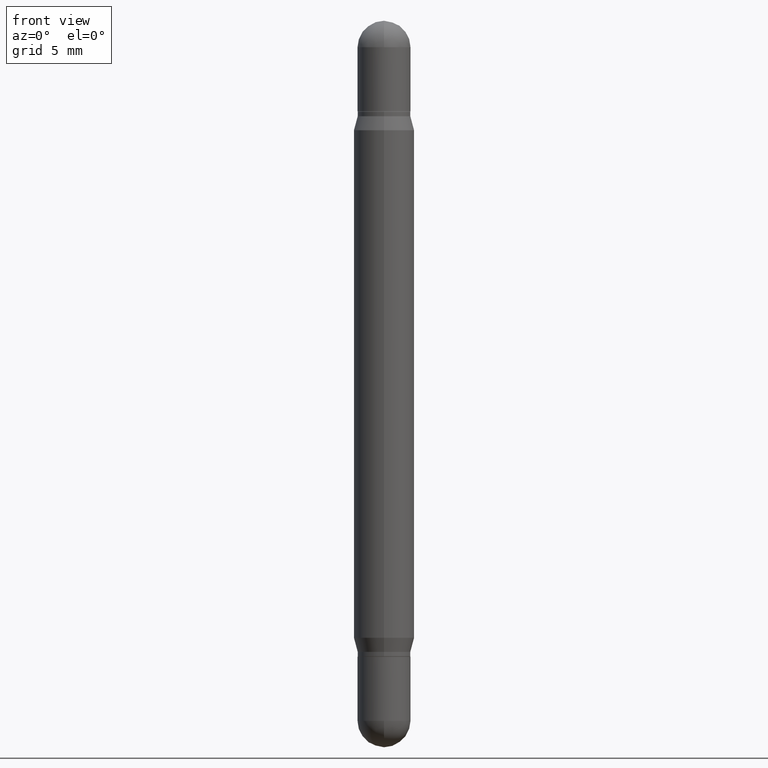
[diagram: clean part render]
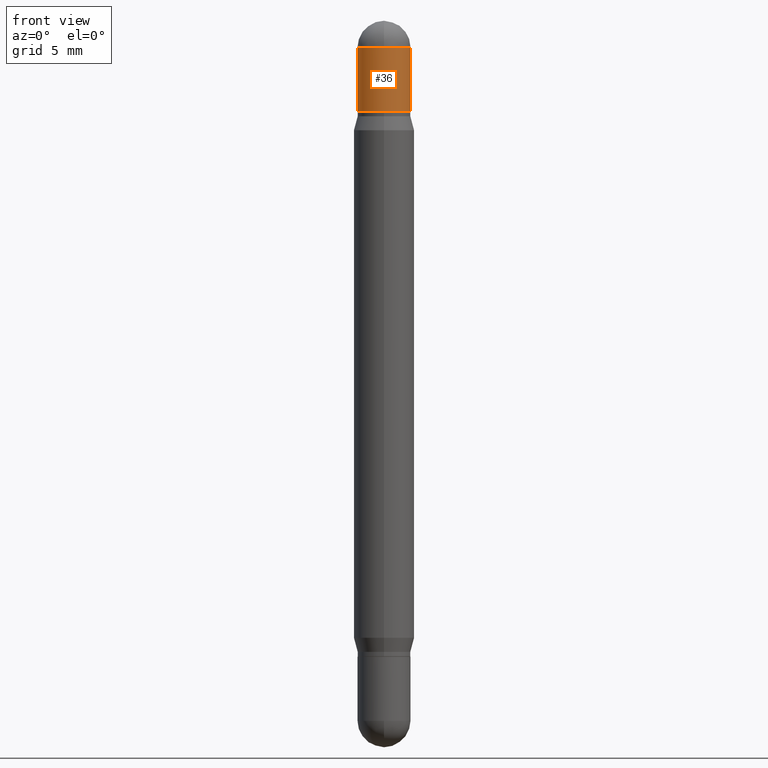
[diagram: same view with one face highlighted and labeled with its STEP entity id]
A machine part, front view. The second image highlights one B-rep face of the part: STEP entity #36.
In plain terms, the highlighted cylindrical surface (edge-blend (fillet) strip) has radius 1.3894 mm, axis along (-0, -0, -1).
Its self-contained STEP definition (entity closure, byte-faithful):
#9 = AXIS2_PLACEMENT_3D ( 'NONE', #87, #768, #185 ) ;
#36 = ADVANCED_FACE ( 'NONE', ( #954 ), #710, .T. ) ;
#52 = DIRECTION ( 'NONE',  ( 2.445468806185136597E-29, 3.479614466977828254E-15, 1.000000000000000000 ) ) ;
#53 = CIRCLE ( 'NONE', #845, 0.05469999999999999862 ) ;
#55 = EDGE_LOOP ( 'NONE', ( #854, #140, #611, #1017, #194 ) ) ;
#73 = VECTOR ( 'NONE', #137, 39.37007874015748143 ) ;
#87 = CARTESIAN_POINT ( 'NONE',  ( 3.534436065579377749E-29, -1.992350652426753183E-16, -0.05470000000000037332 ) ) ;
#105 = CARTESIAN_POINT ( 'NONE',  ( -0.05469999999999999862, -4.853052613887629372E-15, -1.500000000000000444 ) ) ;
#120 = DIRECTION ( 'NONE',  ( 2.445468806185136597E-29, 3.479614466977828254E-15, 1.000000000000000000 ) ) ;
#137 = DIRECTION ( 'NONE',  ( -2.445468806185136877E-29, -3.479614466977828648E-15, -1.000000000000000000 ) ) ;
#140 = ORIENTED_EDGE ( 'NONE', *, *, #1099, .T. ) ;
#185 = DIRECTION ( 'NONE',  ( 1.000000000000000000, -6.982962677686268288E-15, 0.000000000000000000 ) ) ;
#194 = ORIENTED_EDGE ( 'NONE', *, *, #1117, .F. ) ;
#263 = DIRECTION ( 'NONE',  ( -2.445468806185136877E-29, -3.479614466977828648E-15, -1.000000000000000000 ) ) ;
#271 = DIRECTION ( 'NONE',  ( -2.445468806185136597E-29, -3.479614466977828254E-15, -1.000000000000000000 ) ) ;
#288 = VERTEX_POINT ( 'NONE', #1050 ) ;
#289 = VECTOR ( 'NONE', #263, 39.37007874015748143 ) ;
#292 = LINE ( 'NONE', #387, #73 ) ;
#298 = VERTEX_POINT ( 'NONE', #519 ) ;
#352 = VERTEX_POINT ( 'NONE', #626 ) ;
#387 = CARTESIAN_POINT ( 'NONE',  ( 0.05469999999999999862, -5.610289912835170741E-15, -1.500000000000000444 ) ) ;
#441 = LINE ( 'NONE', #105, #289 ) ;
#461 = EDGE_CURVE ( 'NONE', #298, #352, #292, .T. ) ;
#464 = DIRECTION ( 'NONE',  ( 1.000000000000000000, -6.982962677686266711E-15, 0.000000000000000000 ) ) ;
#493 = EDGE_CURVE ( 'NONE', #740, #352, #53, .T. ) ;
#519 = CARTESIAN_POINT ( 'NONE',  ( 0.05470000000000000556, -8.113796207026979199E-16, -0.05470000000000037332 ) ) ;
#522 = CARTESIAN_POINT ( 'NONE',  ( 0.000000000000000000, -5.228321854365732350E-15, -1.500000000000000444 ) ) ;
#543 = CARTESIAN_POINT ( 'NONE',  ( 3.534436065579377749E-29, -1.992350652426753183E-16, -0.05470000000000037332 ) ) ;
#564 = EDGE_CURVE ( 'NONE', #572, #288, #970, .T. ) ;
#572 = VERTEX_POINT ( 'NONE', #590 ) ;
#590 = CARTESIAN_POINT ( 'NONE',  ( -0.05470000000000000556, -5.414232175515625545E-17, -0.05470000000000037332 ) ) ;
#611 = ORIENTED_EDGE ( 'NONE', *, *, #493, .T. ) ;
#626 = CARTESIAN_POINT ( 'NONE',  ( 0.05469999999999999862, -1.041556117693281390E-15, -0.1870000000000002216 ) ) ;
#695 = AXIS2_PLACEMENT_3D ( 'NONE', #522, #271, #880 ) ;
#710 = CYLINDRICAL_SURFACE ( 'NONE', #695, 0.05469999999999999862 ) ;
#719 = DIRECTION ( 'NONE',  ( 1.000000000000000000, -6.982962677686268288E-15, 0.000000000000000000 ) ) ;
#740 = VERTEX_POINT ( 'NONE', #1011 ) ;
#768 = DIRECTION ( 'NONE',  ( 2.445468806185136597E-29, 3.479614466977828254E-15, 1.000000000000000000 ) ) ;
#845 = AXIS2_PLACEMENT_3D ( 'NONE', #979, #52, #464 ) ;
#847 = AXIS2_PLACEMENT_3D ( 'NONE', #543, #120, #719 ) ;
#854 = ORIENTED_EDGE ( 'NONE', *, *, #564, .F. ) ;
#880 = DIRECTION ( 'NONE',  ( 1.000000000000000000, -6.982962677686260400E-15, 0.000000000000000000 ) ) ;
#954 = FACE_OUTER_BOUND ( 'NONE', #55, .T. ) ;
#970 = CIRCLE ( 'NONE', #847, 0.05470000000000000556 ) ;
#979 = CARTESIAN_POINT ( 'NONE',  ( 3.210900542521084585E-29, -6.595880592238425060E-16, -0.1870000000000002216 ) ) ;
#1011 = CARTESIAN_POINT ( 'NONE',  ( -0.05469999999999999862, -5.414232175515661906E-17, -0.1870000000000002216 ) ) ;
#1015 = CIRCLE ( 'NONE', #9, 0.05470000000000000556 ) ;
#1017 = ORIENTED_EDGE ( 'NONE', *, *, #461, .F. ) ;
#1050 = CARTESIAN_POINT ( 'NONE',  ( -3.819680584694040760E-16, -0.05470000000000030393, -0.05470000000000018597 ) ) ;
#1099 = EDGE_CURVE ( 'NONE', #572, #740, #441, .T. ) ;
#1117 = EDGE_CURVE ( 'NONE', #288, #298, #1015, .T. ) ;